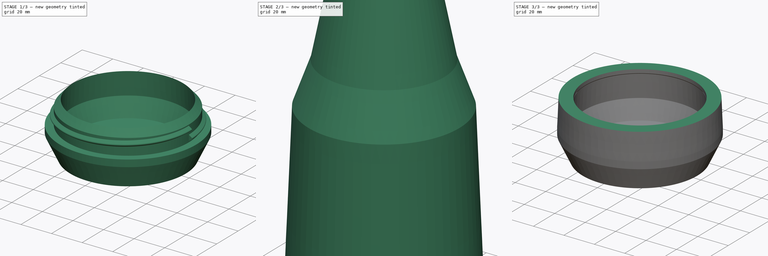
[diagram: build sequence overview — one tinted view per stage of 3, left to right]
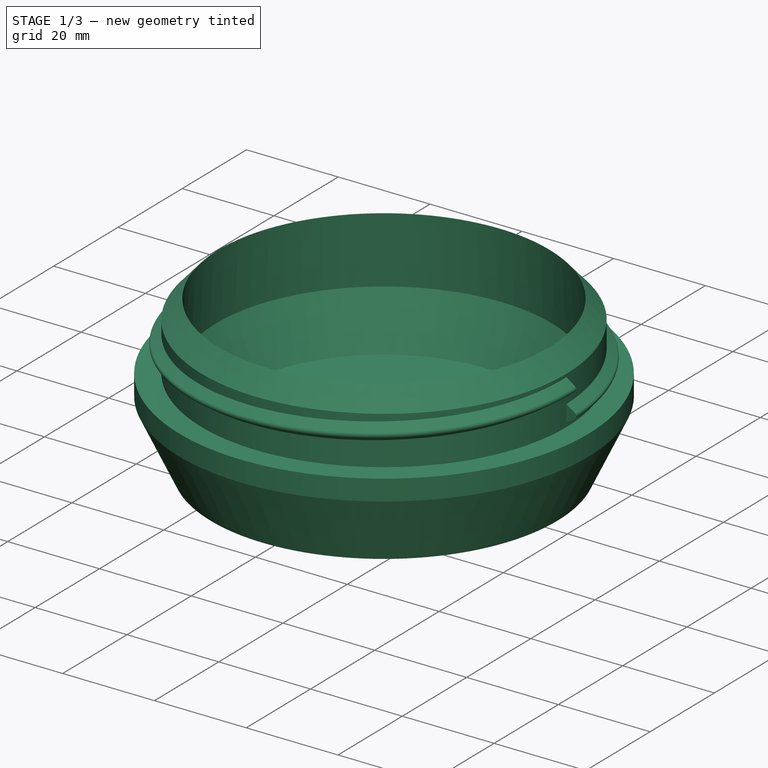
[diagram: stage 1 of 3 — iso view after this stage's code; geometry added in this stage tinted green]
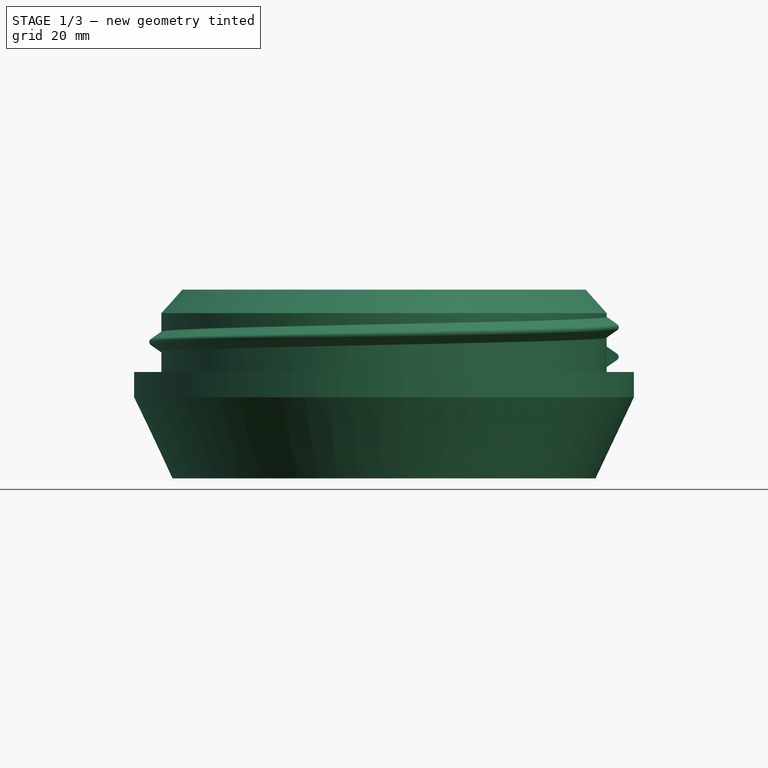
[diagram: stage 1 of 3 — front view after this stage's code; geometry added in this stage tinted green]
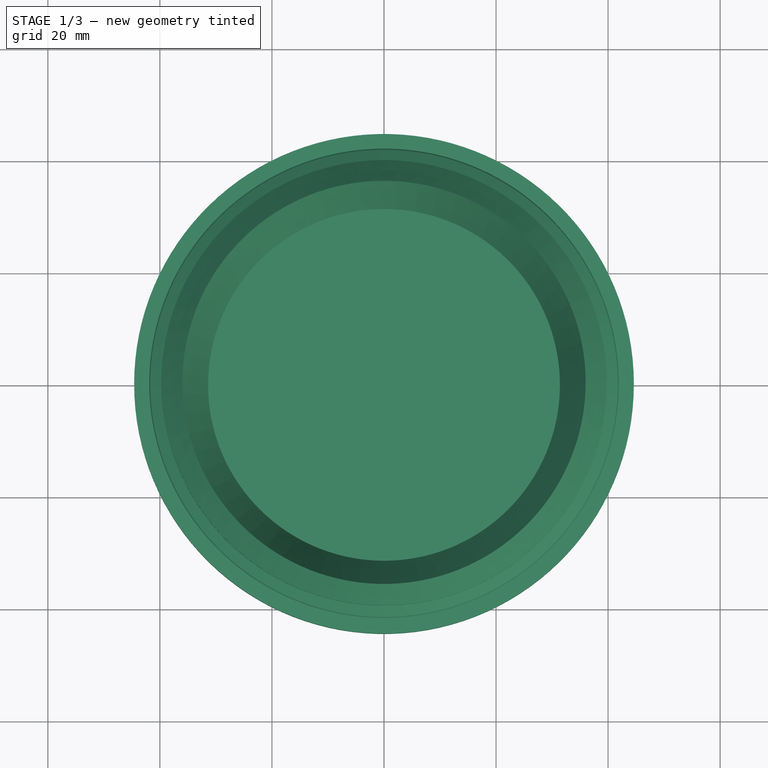
[diagram: stage 1 of 3 — top view after this stage's code; geometry added in this stage tinted green]
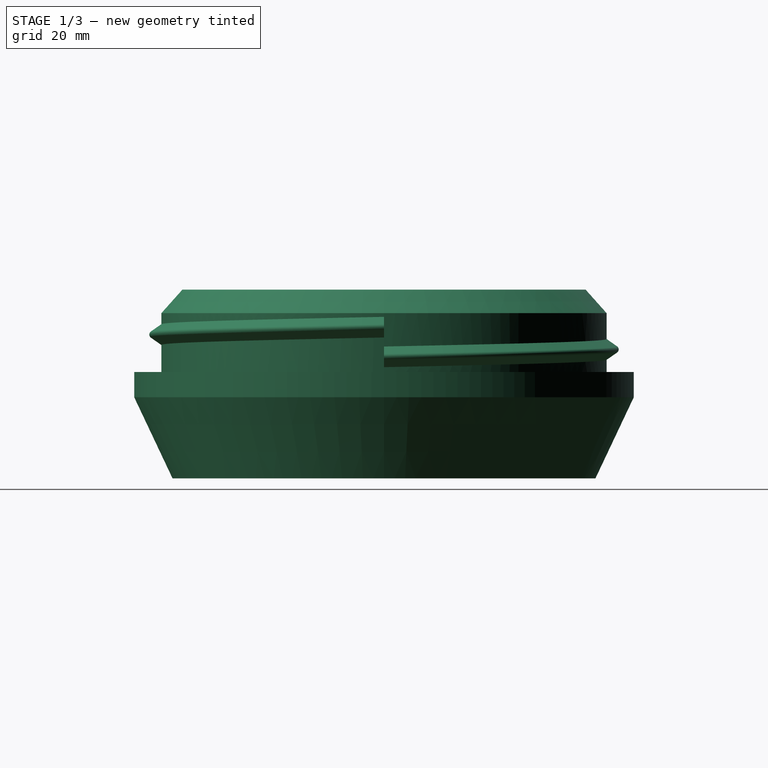
[diagram: stage 1 of 3 — right view after this stage's code; geometry added in this stage tinted green]
FCSTD DOCUMENT  (FreeCAD 1.0R39319 (Git))
Label: 3d-model
License: All rights reserved
LicenseURL: https://en.wikipedia.org/wiki/All_rights_reserved
objects: Sketcher::SketchObject×5, PartDesign::AdditiveHelix×3, PartDesign::Revolution×2, PartDesign::Body×2, PartDesign::SubtractiveHelix×1, PartDesign::Groove×1
note: 33 computed .brp shape members not serialized (recipe doc carries the construction recipe); baked Part::Feature solids carry a one-line shape summary decoded from their .brp

FEATURE [PartDesign::Revolution] Revolution
  Angle = 360
  Angle2 = 60
  Axis = (0,2e-16,1)
  Base = (0,0,0)
  Placement = pos=(0,0,0) rot=(1,0,0;1.5708rad)
  Profile = -> Sketch
  ReferenceAxis = -> Sketch [V_Axis]
  Refine = true
  Reversed = true
  Suppressed = false
  Type = 0
FEATURE [Sketcher::SketchObject] Sketch003  label="Screw"
  ArcFitTolerance = 1e-06
  AttachmentSupport = -> [XZ_Plane]
  ExternalGeometry = -> [Sketch]
  FullyConstrained = true
  MakeInternals = false
  MapMode = 5
  Placement = pos=(0,0,0) rot=(1,0,0;1.5708rad)
  sketch-geometry (4):
    g0: LineSegment StartX=39.74 StartY=28.85 StartZ=0 EndX=41.6157 EndY=27.5366 EndZ=0
    g1: ArcOfCircle CenterX=41.24 CenterY=27 CenterZ=0 NormalX=0 NormalY=0 NormalZ=1 AngleXU=0 Radius=0.655067 StartAngle=5.32325 EndAngle=7.24312
    g2: LineSegment StartX=41.6157 StartY=26.4634 StartZ=0 EndX=39.74 EndY=25.15 EndZ=0
    g3: LineSegment StartX=39.74 StartY=28.85 StartZ=0 EndX=39.74 EndY=25.15 EndZ=0
  constraints (12):
    c: Tangent(g0,g1) = 1.5708
    c: Coincident(g1,g2)
    c: Angle(g2,g0) = 1.91986
    c: Vertical(g0,g1)
    c: Coincident(g3,g0)
    c: Coincident(g3,g2)
    c: Equal(g2,g0)
    c: DistanceY(g2,g0) = 3.7
    c: Distance(g1,g3) = 1.5
    c: Vertical(g2,g0)
    c: DistanceY(g-1,g1) = 27
    c: DistanceX(g0,g-3) = 4.86
FEATURE [PartDesign::AdditiveHelix] AdditiveHelix
  Angle = 0
  Axis = (0,2e-16,1)
  Base = (0,0,0)
  BaseFeature = -> Revolution
  Growth = 0
  HasBeenEdited = true
  Height = 5.3
  LeftHanded = false
  Mode = 0
  Outside = false
  Pitch = 5.3
  Placement = pos=(0,0,0) rot=(1,0,0;1.5708rad)
  Profile = -> Sketch003
  ReferenceAxis = -> Sketch003 [V_Axis]
  Refine = true
  Reversed = true
  Suppressed = false
  Tolerance = 0.1
  Turns = 1
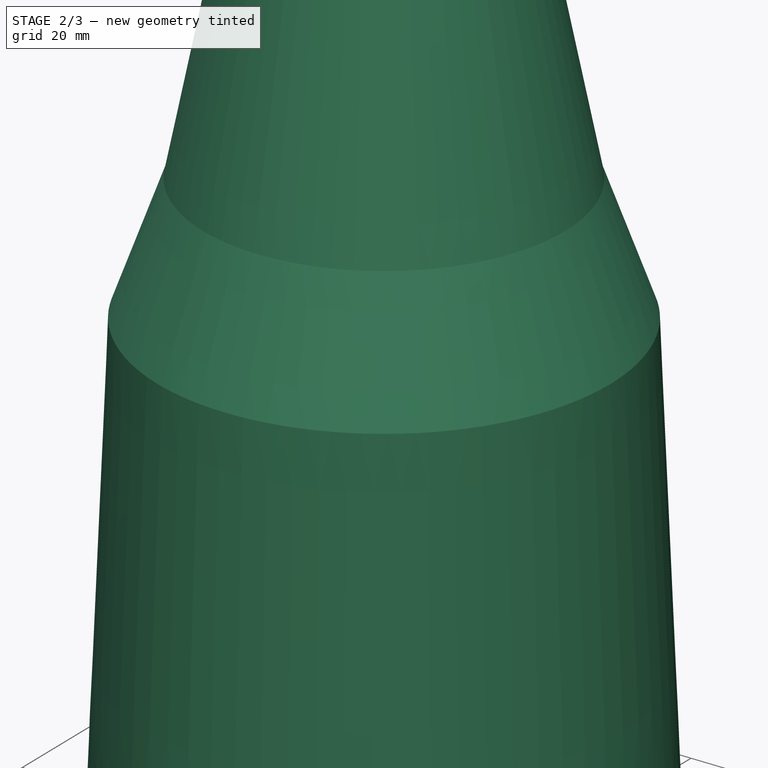
[diagram: stage 2 of 3 — iso view after this stage's code; geometry added in this stage tinted green]
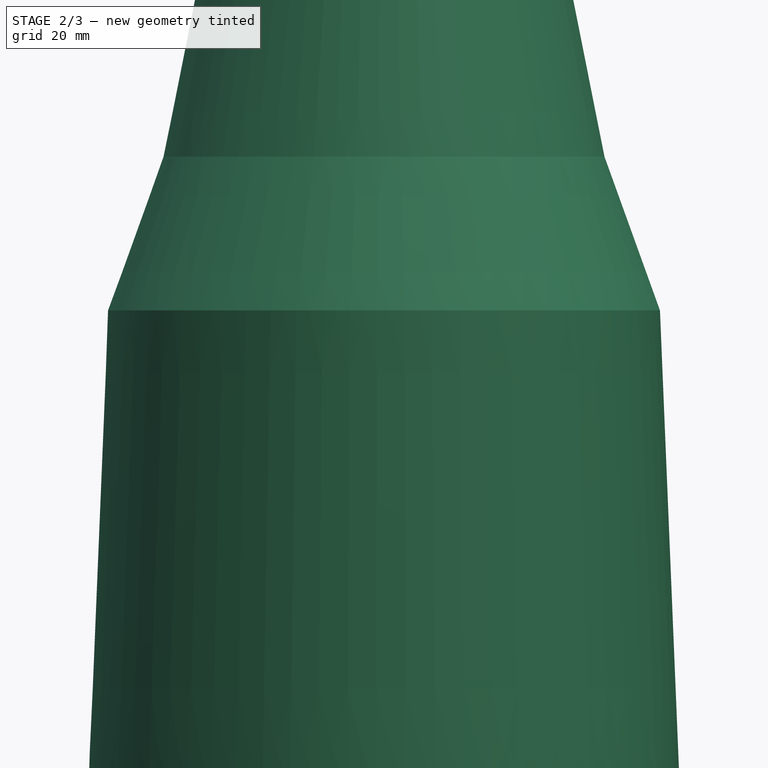
[diagram: stage 2 of 3 — front view after this stage's code; geometry added in this stage tinted green]
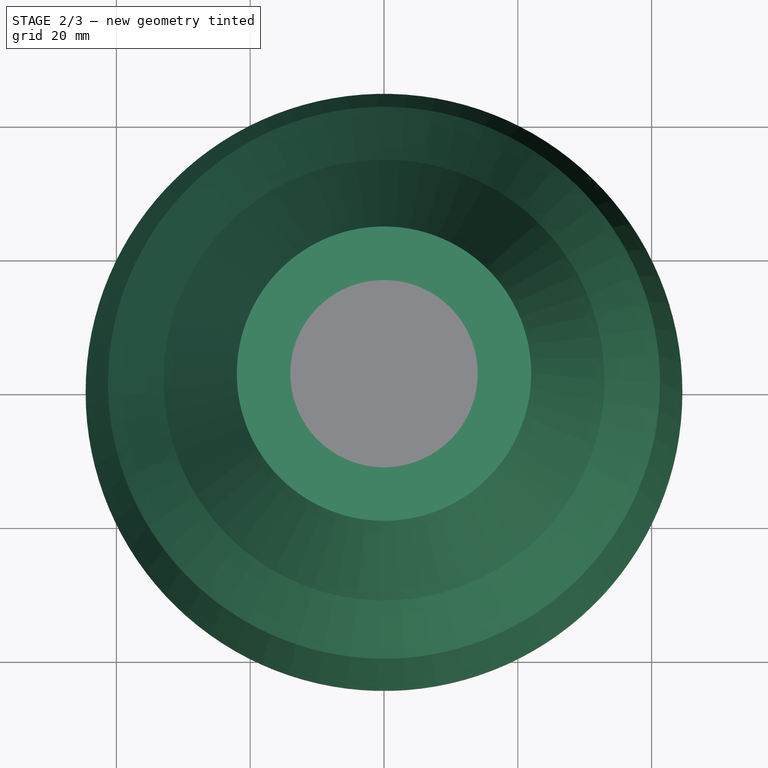
[diagram: stage 2 of 3 — top view after this stage's code; geometry added in this stage tinted green]
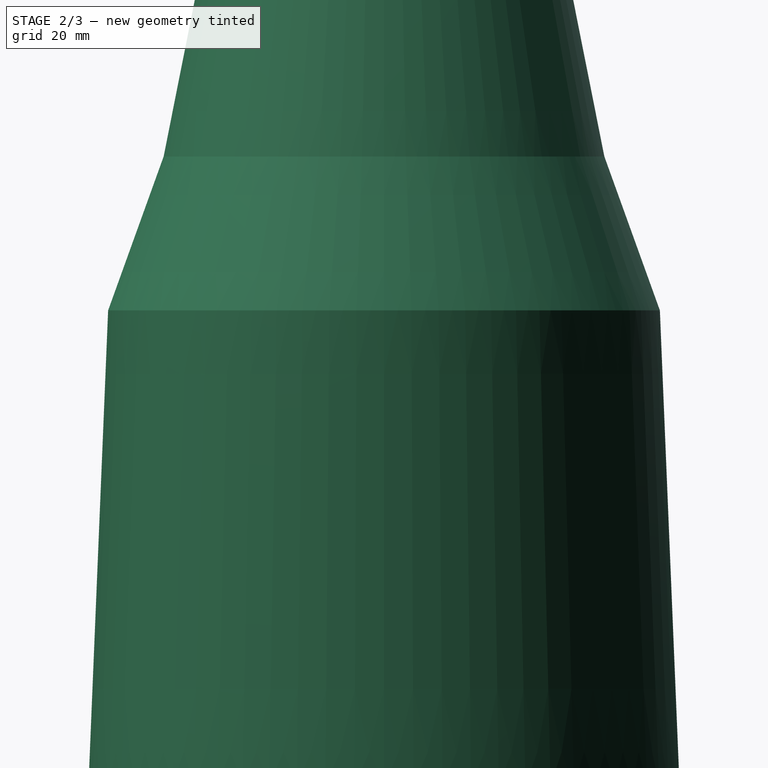
[diagram: stage 2 of 3 — right view after this stage's code; geometry added in this stage tinted green]
FEATURE [Sketcher::SketchObject] Sketch  label="Base Profile"
  ArcFitTolerance = 1e-06
  AttachmentSupport = -> [XZ_Plane]
  FullyConstrained = true
  MakeInternals = false
  MapMode = 5
  Placement = pos=(0,0,0) rot=(1,0,0;1.5708rad)
  sketch-geometry (10):
    g0: LineSegment StartX=0 StartY=0 StartZ=0 EndX=37.75 EndY=0 EndZ=0
    g1: LineSegment StartX=37.75 StartY=0 StartZ=0 EndX=44.6 EndY=14.4904 EndZ=0
    g2: LineSegment StartX=36.6 StartY=19 StartZ=0 EndX=31.4 EndY=8 EndZ=0
    g3: LineSegment StartX=31.4 StartY=8 StartZ=0 EndX=0 EndY=8 EndZ=0
    g4: LineSegment StartX=0 StartY=8 StartZ=0 EndX=0 EndY=0 EndZ=0
    g5: LineSegment StartX=44.6 StartY=14.4904 StartZ=0 EndX=44.6 EndY=19 EndZ=0
    g6: LineSegment StartX=44.6 StartY=19 StartZ=0 EndX=39.75 EndY=19 EndZ=0
    g7: LineSegment StartX=36.6 StartY=19 StartZ=0 EndX=35.9913 EndY=33.7068 EndZ=0
    g8: LineSegment StartX=39.75 StartY=29.5 StartZ=0 EndX=39.75 EndY=19 EndZ=0
    g9: LineSegment StartX=35.9913 StartY=33.7068 StartZ=0 EndX=39.75 EndY=29.5 EndZ=0
  constraints (29):
    c: DistanceY(g0,g3) = 8
    c: DistanceX(g2,g5) = 8
    c: Horizontal(g2,g5)
    c: Vertical(g1,g5)
    c: Parallel(g3,g0)
    c: Parallel(g2,g1)
    c: Horizontal(g0,g0)
    c: DistanceX(g0,g0) = 37.75
    c: DistanceX(g3,g3) = 31.4
    c: DistanceY(g0,g5) = 19
    c: Coincident(g0,g4)
    c: Coincident(g0,g-1)
    c: Vertical(g4)
    c: DistanceX(g0,g2) = 36.6
    c: Coincident(g2,g3)
    c: Coincident(g3,g4)
    c: Coincident(g0,g1)
    c: Coincident(g1,g5)
    c: Horizontal(g6,g5)
    c: DistanceX(g6,g6) = 4.85
    c: Coincident(g5,g6)
    c: Coincident(g2,g7)
    c: Coincident(g8,g6)
    c: Vertical(g8,g6)
    c: DistanceY(g8,g8) = 10.5
    c: Angle(g7) = 1.61216
    c: Coincident(g9,g7)
    c: Coincident(g9,g8)
    c: Angle(g9) = -0.841598
FEATURE [Sketcher::SketchObject] Sketch001  label="Top Profile"
  ArcFitTolerance = 1e-06
  AttachmentSupport = -> [XZ_Plane001]
  FullyConstrained = true
  MakeInternals = false
  MapMode = 5
  Placement = pos=(0,0,0) rot=(1,0,0;1.5708rad)
  sketch-geometry (11):
    g0: LineSegment StartX=43.9816 StartY=34 StartZ=0 EndX=41.25 EndY=100 EndZ=0
    g1: LineSegment StartX=41.25 StartY=100 StartZ=0 EndX=32.95 EndY=123 EndZ=0
    g2: LineSegment StartX=32.95 StartY=123 StartZ=0 EndX=22 EndY=178 EndZ=0
    g3: LineSegment StartX=22 StartY=178 StartZ=0 EndX=14 EndY=178 EndZ=0
    g4: LineSegment StartX=14 StartY=178 StartZ=0 EndX=24.95 EndY=123 EndZ=0
    g5: LineSegment StartX=24.95 StartY=123 StartZ=0 EndX=33.25 EndY=100 EndZ=0
    g6: LineSegment StartX=33.25 StartY=100 StartZ=0 EndX=35.9816 EndY=34 EndZ=0
    g7: LineSegment StartX=44.6024 StartY=19 StartZ=0 EndX=43.9816 EndY=34 EndZ=0
    g8: LineSegment StartX=40.0024 StartY=19 StartZ=0 EndX=44.6024 EndY=19 EndZ=0
    g9: LineSegment StartX=40.0024 StartY=29.5 StartZ=0 EndX=40.0024 EndY=19 EndZ=0
    g10: LineSegment StartX=35.9816 StartY=34 StartZ=0 EndX=40.0024 EndY=29.5 EndZ=0
  constraints (33):
    c: Coincident(g0,g1)
    c: Coincident(g1,g2)
    c: Coincident(g2,g3)
    c: Coincident(g3,g4)
    c: Coincident(g4,g5)
    c: Coincident(g5,g6)
    c: Parallel(g6,g0)
    c: Parallel(g5,g1)
    c: Horizontal(g4,g1)
    c: Horizontal(g1,g5)
    c: Horizontal(g3)
    c: Parallel(g4,g2)
    c: DistanceX(g3,g2) = 8
    c: DistanceX(g-1,g5) = 33.25
    c: DistanceX(g-1,g4) = 24.95
    c: DistanceX(g-1,g3) = 14
    c: Angle(g6) = -1.52943
    c: DistanceY(g-1,g0) = 100
    c: DistanceY(g0,g1) = 23
    c: DistanceY(g1,g2) = 55
    c: Horizontal(g0,g6)
    c: Coincident(g7,g0)
    c: Coincident(g8,g7)
    c: Horizontal(g8)
    c: Coincident(g9,g8)
    c: Vertical(g9)
    c: Coincident(g10,g6)
    c: Coincident(g10,g9)
    c: DistanceY(g-1,g7) = 19
    c: DistanceY(g7,g0) = 15
    c: Parallel(g7,g0)
    c: DistanceY(g8,g9) = 10.5
    c: DistanceX(g8,g7) = 4.6
FEATURE [PartDesign::Revolution] Revolution001
  Angle = 360
  Angle2 = 60
  Axis = (0,2e-16,1)
  Base = (0,0,0)
  Placement = pos=(0,0,0) rot=(1,0,0;1.5708rad)
  Profile = -> Sketch001
  ReferenceAxis = -> Sketch001 [V_Axis]
  Refine = true
  Reversed = true
  Suppressed = false
  Type = 0
FEATURE [PartDesign::Body] Body001  label="Top"
  AllowCompound = false
  Group = -> [Sketch001,Revolution001,Sketch002,SubtractiveHelix,Sketch004,Groove]
  Origin = -> Origin001
  Tip = -> Groove
FEATURE [PartDesign::AdditiveHelix] AdditiveHelix001
  Angle = -79
  Axis = (1e-16,1e-16,1)
  Base = (0,0,0)
  BaseFeature = -> AdditiveHelix
  Growth = -27.2661
  HasBeenEdited = true
  Height = 0.4
  LeftHanded = false
  Mode = 0
  Outside = false
  Pitch = 5.3
  Placement = pos=(0,0,0) rot=(1,0,0;1.5708rad)
  Profile = -> AdditiveHelix [Face8]
  ReferenceAxis = -> Z_Axis
  Refine = true
  Suppressed = false
  Tolerance = 0.1
  Turns = 0.0754717
FEATURE [PartDesign::AdditiveHelix] AdditiveHelix002
  Angle = -79
  Axis = (1e-16,1e-16,1)
  Base = (0,0,0)
  BaseFeature = -> AdditiveHelix001
  Growth = -27.2661
  HasBeenEdited = true
  Height = 0.4
  LeftHanded = false
  Mode = 0
  Outside = false
  Pitch = 5.3
  Placement = pos=(0,0,0) rot=(1,0,0;1.5708rad)
  Profile = -> AdditiveHelix001 [Face12]
  ReferenceAxis = -> Z_Axis
  Refine = true
  Reversed = true
  Suppressed = false
  Tolerance = 0.1
  Turns = 0.0754717
FEATURE [PartDesign::Body] Body  label="Base"
  AllowCompound = false
  Group = -> [Sketch,Revolution,Sketch003,AdditiveHelix,AdditiveHelix001,AdditiveHelix002]
  Origin = -> Origin
  Tip = -> AdditiveHelix002
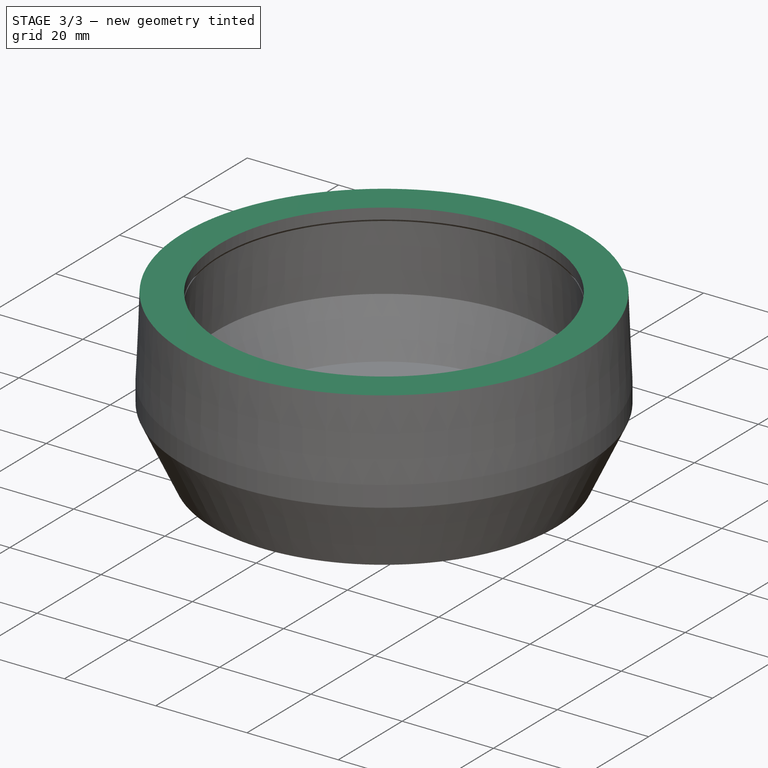
[diagram: stage 3 of 3 — iso view after this stage's code; geometry added in this stage tinted green]
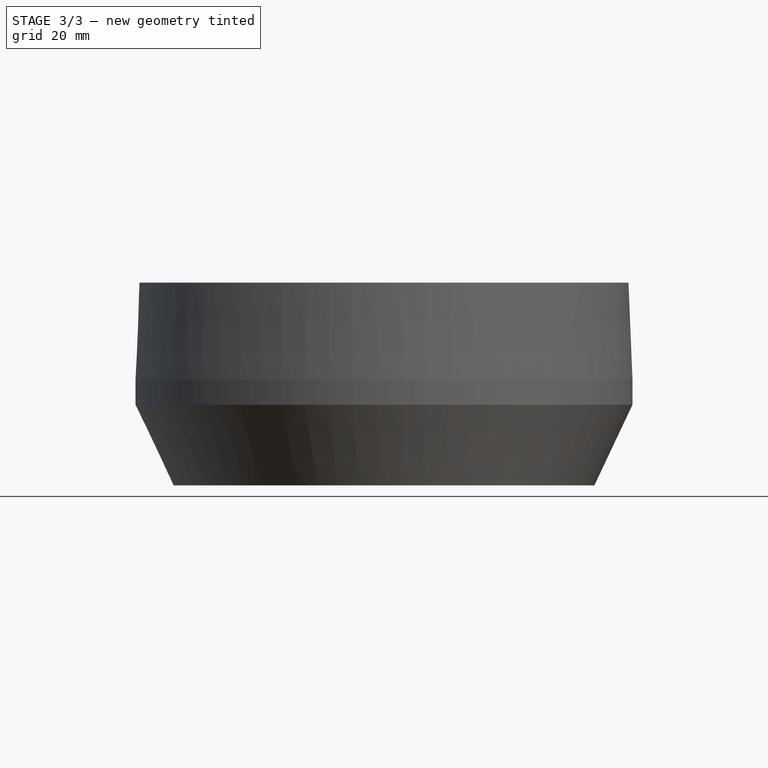
[diagram: stage 3 of 3 — front view after this stage's code; geometry added in this stage tinted green]
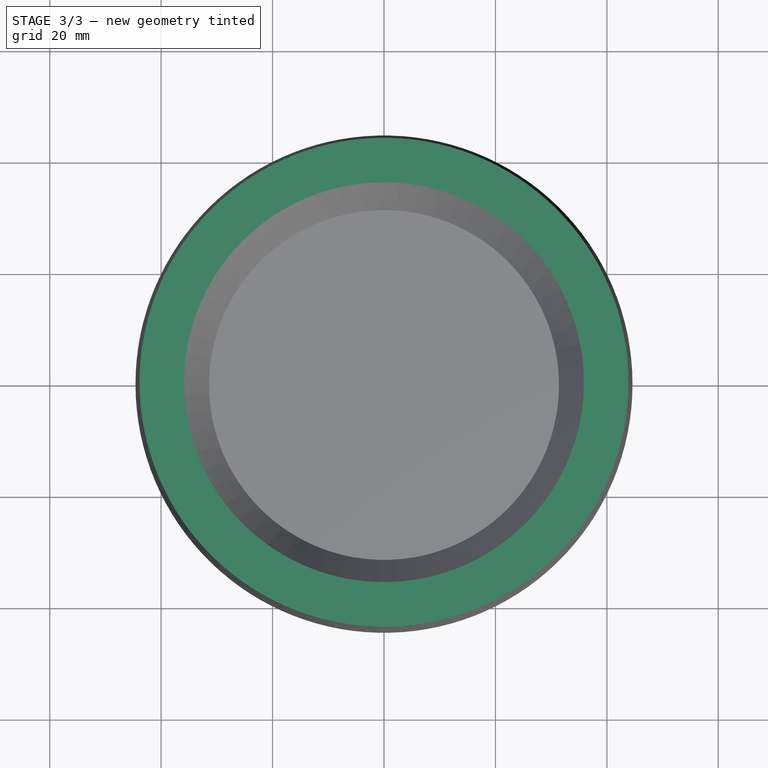
[diagram: stage 3 of 3 — top view after this stage's code; geometry added in this stage tinted green]
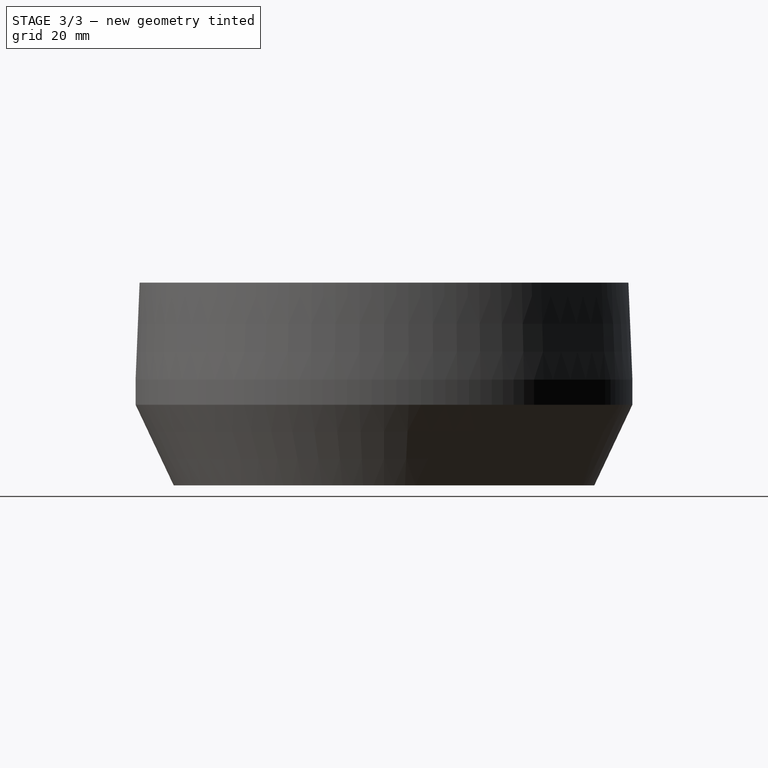
[diagram: stage 3 of 3 — right view after this stage's code; geometry added in this stage tinted green]
FEATURE [Sketcher::SketchObject] Sketch002  label="Thread"
  ArcFitTolerance = 1e-06
  AttachmentSupport = -> [XZ_Plane001]
  ExternalGeometry = -> [Sketch001]
  FullyConstrained = true
  MakeInternals = false
  MapMode = 5
  Placement = pos=(0,0,0) rot=(1,0,0;1.5708rad)
  sketch-geometry (4):
    g0: LineSegment StartX=40.0024 StartY=28.85 StartZ=0 EndX=41.8782 EndY=27.5366 EndZ=0
    g1: ArcOfCircle CenterX=41.5024 CenterY=27 CenterZ=0 NormalX=0 NormalY=0 NormalZ=1 AngleXU=0 Radius=0.655067 StartAngle=5.32325 EndAngle=7.24312
    g2: LineSegment StartX=41.8782 StartY=26.4634 StartZ=0 EndX=40.0024 EndY=25.15 EndZ=0
    g3: LineSegment StartX=40.0024 StartY=28.85 StartZ=0 EndX=40.0024 EndY=25.15 EndZ=0
  constraints (12):
    c: PointOnObject(g0,g-3)
    c: Tangent(g0,g1) = 1.5708
    c: Coincident(g1,g2)
    c: Angle(g2,g0) = 1.91986
    c: Vertical(g0,g1)
    c: Coincident(g3,g0)
    c: Coincident(g3,g2)
    c: Vertical(g-3,g2)
    c: Equal(g2,g0)
    c: DistanceY(g-3,g1) = 8
    c: DistanceY(g2,g0) = 3.7
    c: Distance(g1,g3) = 1.5
FEATURE [PartDesign::SubtractiveHelix] SubtractiveHelix
  Angle = 0
  Axis = (0,2e-16,1)
  Base = (0,0,0)
  BaseFeature = -> Revolution001
  Growth = 0
  HasBeenEdited = true
  Height = 11.5
  LeftHanded = false
  Mode = 0
  Outside = false
  Pitch = 5.3
  Placement = pos=(0,0,0) rot=(1,0,0;1.5708rad)
  Profile = -> Sketch002
  ReferenceAxis = -> Sketch002 [V_Axis]
  Refine = true
  Reversed = true
  Suppressed = false
  Tolerance = 0.1
  Turns = 2.16981
FEATURE [Sketcher::SketchObject] Sketch004  label="Temp Removal of Top Section"
  ArcFitTolerance = 1e-06
  AttachmentSupport = -> [XZ_Plane001]
  FullyConstrained = false
  MakeInternals = false
  MapMode = 5
  Placement = pos=(0,0,0) rot=(1,0,0;1.5708rad)
  sketch-geometry (4):
    g0: LineSegment StartX=60.6167 StartY=36.4132 StartZ=0 EndX=60.6167 EndY=232.163 EndZ=0
    g1: LineSegment StartX=60.6167 StartY=232.163 StartZ=0 EndX=0 EndY=232.163 EndZ=0
    g2: LineSegment StartX=0 StartY=232.163 StartZ=0 EndX=0 EndY=36.4132 EndZ=0
    g3: LineSegment StartX=0 StartY=36.4132 StartZ=0 EndX=60.6167 EndY=36.4132 EndZ=0
  constraints (9):
    c: Coincident(g0,g1)
    c: Coincident(g1,g2)
    c: Coincident(g2,g3)
    c: Coincident(g3,g0)
    c: Vertical(g0)
    c: Vertical(g2)
    c: Horizontal(g1)
    c: Horizontal(g3)
    c: Vertical(g-1,g2)
FEATURE [PartDesign::Groove] Groove
  Angle = 360
  Angle2 = 60
  Axis = (0,2e-16,1)
  Base = (0,0,0)
  BaseFeature = -> SubtractiveHelix
  Placement = pos=(0,0,0) rot=(1,0,0;1.5708rad)
  Profile = -> Sketch004
  ReferenceAxis = -> Sketch004 [V_Axis]
  Refine = true
  Suppressed = false
  Type = 0
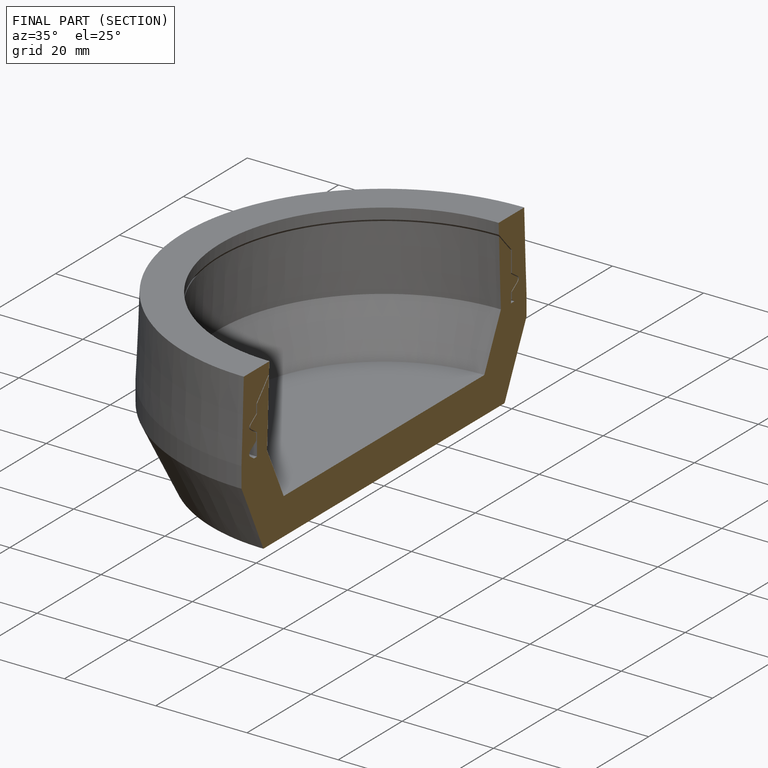
[diagram: finished part — half-section view (interior)]
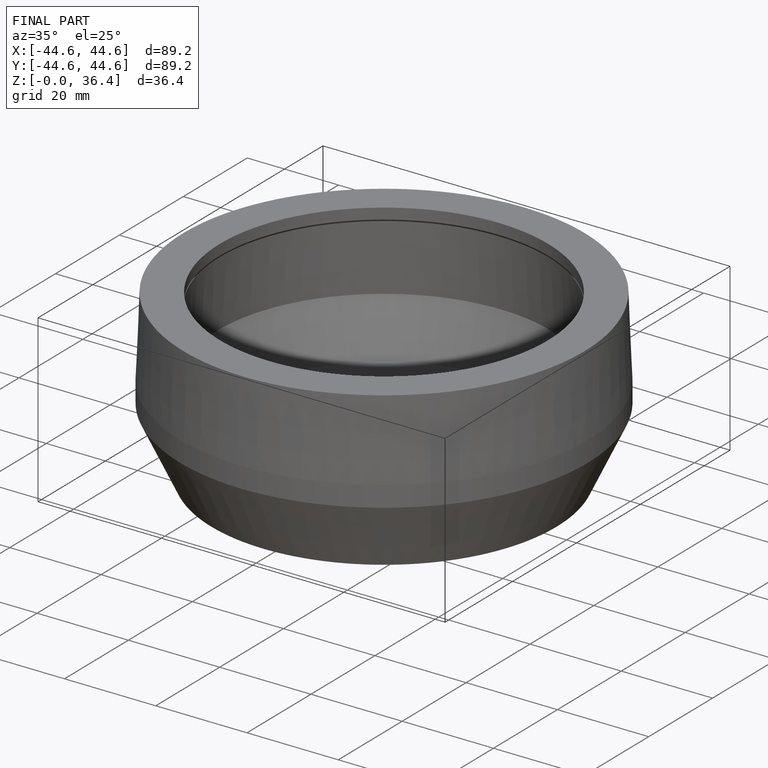
[diagram: finished part — iso view with bounding-box wireframe]
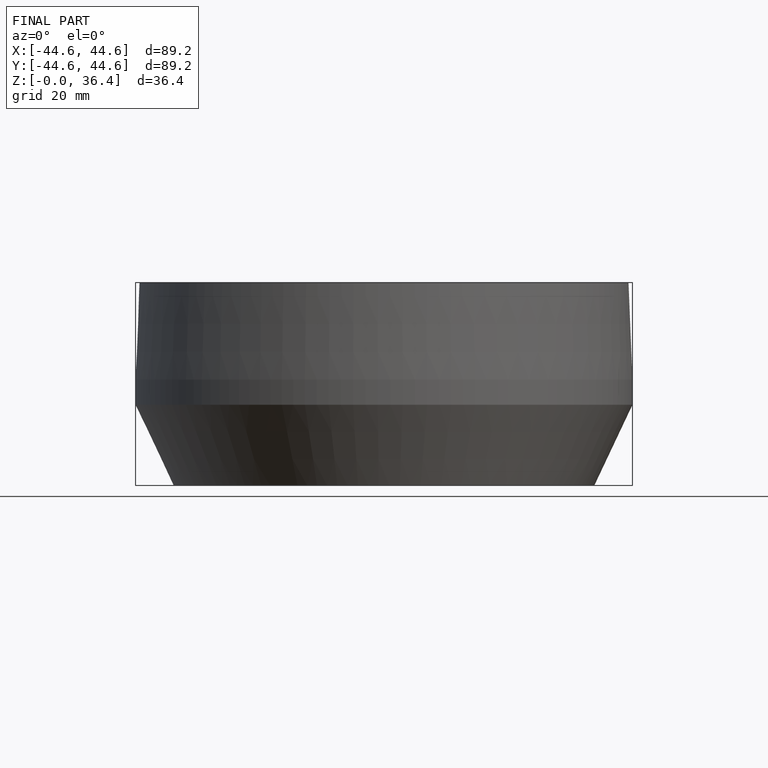
[diagram: finished part — front view with bounding-box wireframe]
